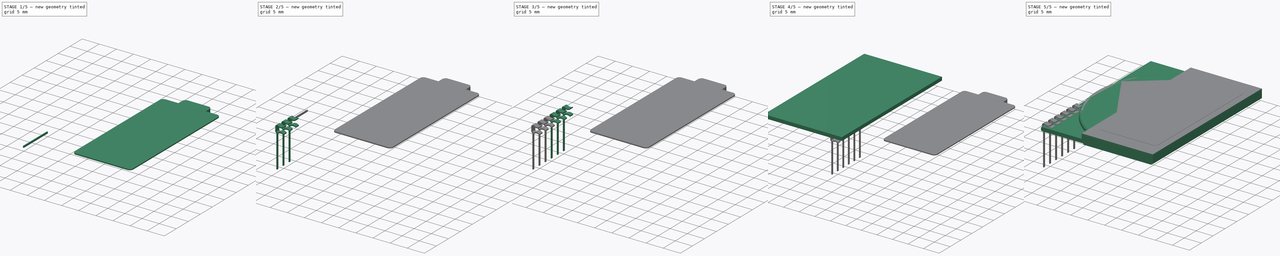
[diagram: build sequence overview — one tinted view per stage of 5, left to right]
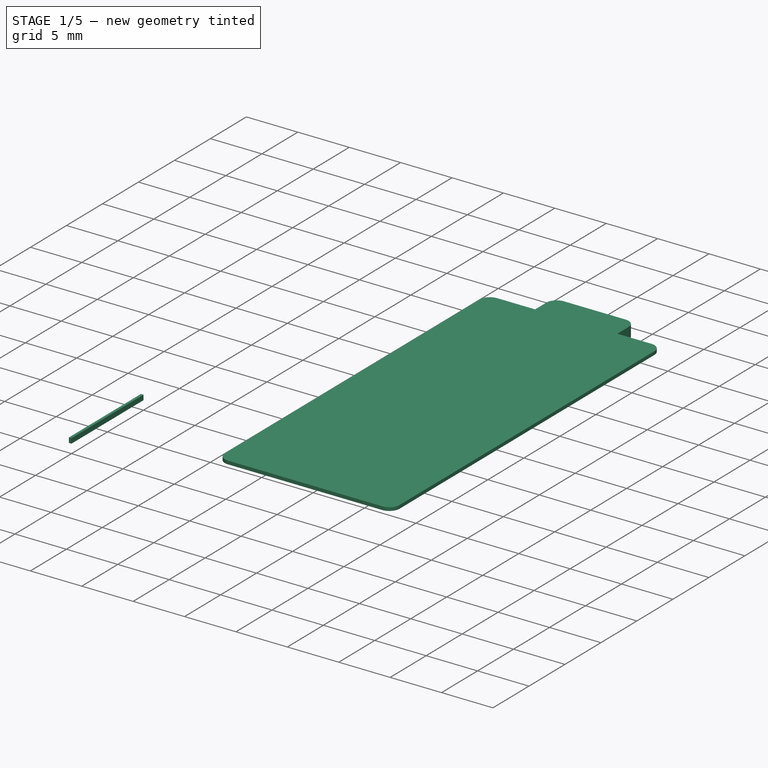
[diagram: stage 1 of 5 — iso view after this stage's code; geometry added in this stage tinted green]
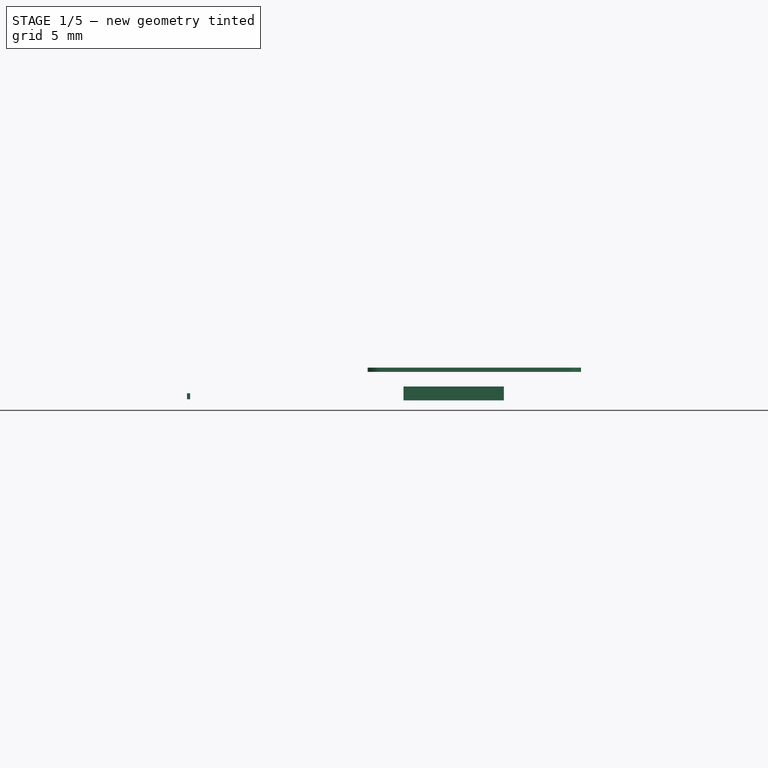
[diagram: stage 1 of 5 — front view after this stage's code; geometry added in this stage tinted green]
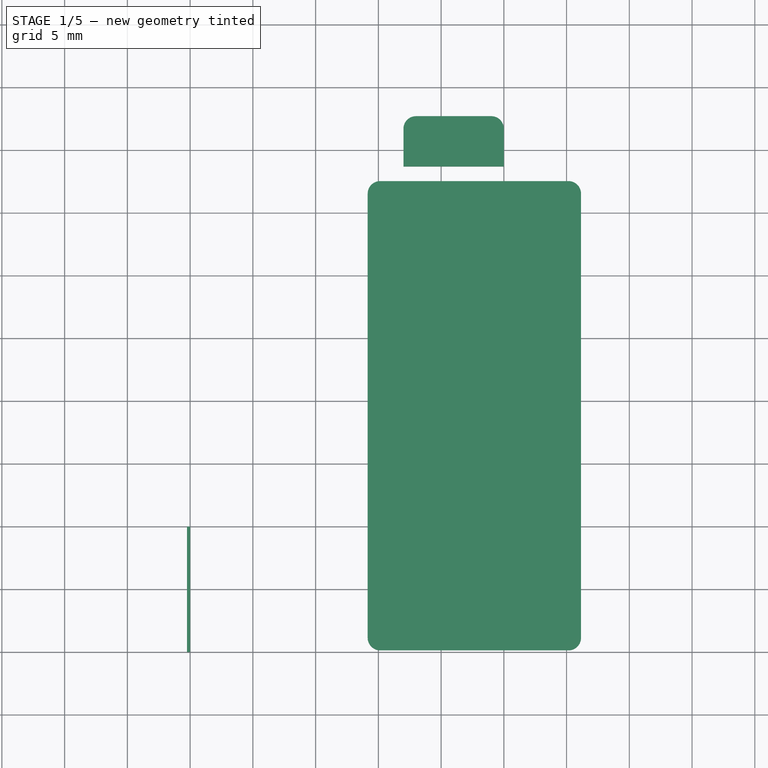
[diagram: stage 1 of 5 — top view after this stage's code; geometry added in this stage tinted green]
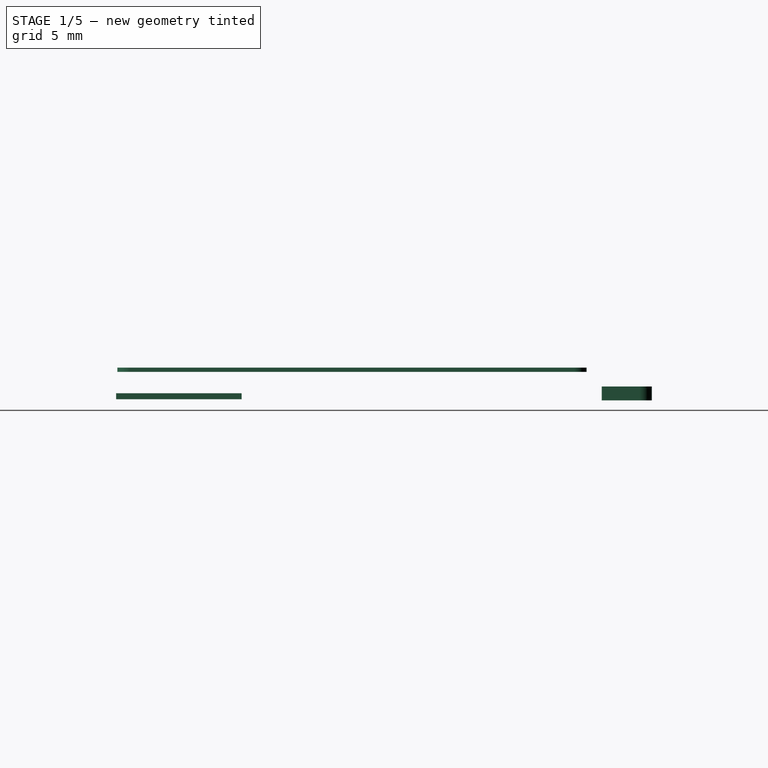
[diagram: stage 1 of 5 — right view after this stage's code; geometry added in this stage tinted green]
FCSTD DOCUMENT  (FreeCAD 0.17R11223 (Git))
Label: EA_T123X-I2C_6
License: All rights reserved
LicenseURL: http://en.wikipedia.org/wiki/All_rights_reserved
objects: Part::Box×19, Sketcher::SketchObject×8, PartDesign::Pad×8, Part::Fillet×7, Part::MultiFuse×7, Part::Chamfer×2, App::DocumentObjectGroup×2, PartDesign::Body×1, Part::Cylinder×1, Part::Cut×1
note: 62 computed .brp shape members not serialized (recipe doc carries the construction recipe); baked Part::Feature solids carry a one-line shape summary decoded from their .brp

FEATURE [Part::Box] Box010  label="Kub004"
  AttacherType = Attacher::AttachEngine3D
  Height = 0.33
  Length = 17
  Placement = pos=(14.15,-9.9,2.6) rot=(0,0,1;0rad)
  Width = 37.4
FEATURE [Part::Fillet] Fillet001
  Base = -> Box010
  Edges = 1 edges r=1: [Edge1]
FEATURE [Part::Fillet] Fillet002
  Base = -> Fillet001
  Edges = 1 edges r=1: [Edge15]
FEATURE [Part::Fillet] Fillet003
  Base = -> Fillet002
  Edges = 1 edges r=1: [Edge16]
FEATURE [Part::Box] Box023  label="Kub011"
  AttacherType = Attacher::AttachEngine3D
  Height = 0.48
  Length = 0.25
  Placement = pos=(-0.25,-10,0.41) rot=(0,0,1;0rad)
  Width = 10
FEATURE [App::DocumentObjectGroup] Grupp001  label="Legs"
  Group = -> [Fusion,Fusion001,Fusion002,Fusion003,Fusion004,Fusion005,Fusion006]
FEATURE [Part::Box] Box024  label="Kub012"
  AttacherType = Attacher::AttachEngine3D
  Height = 1.1
  Length = 8
  Placement = pos=(0,29,0.33) rot=(0,0,1;0rad)
  Width = 4
FEATURE [Part::Fillet] Fillet004
  Base = -> Box024
  Edges = 1 edges r=1: [Edge7]
FEATURE [Part::Fillet] Fillet005
  Base = -> Fillet004
  Edges = 1 edges r=1: [Edge15]
  Placement = pos=(17,-0.3,0) rot=(0,0,1;0rad)
FEATURE [Part::Fillet] Fillet006
  Base = -> Fillet003
  Edges = 1 edges r=1: [Edge16]
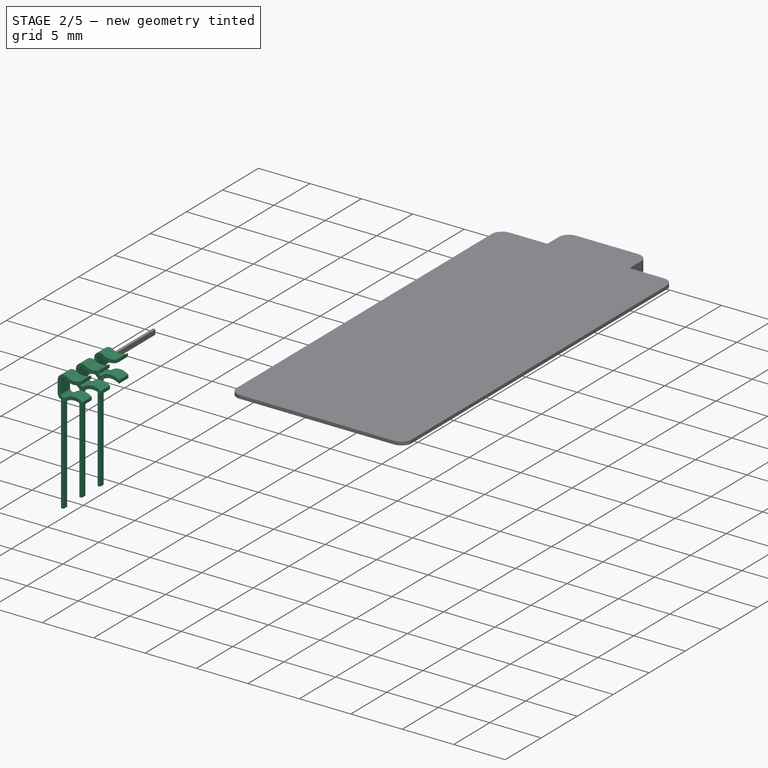
[diagram: stage 2 of 5 — iso view after this stage's code; geometry added in this stage tinted green]
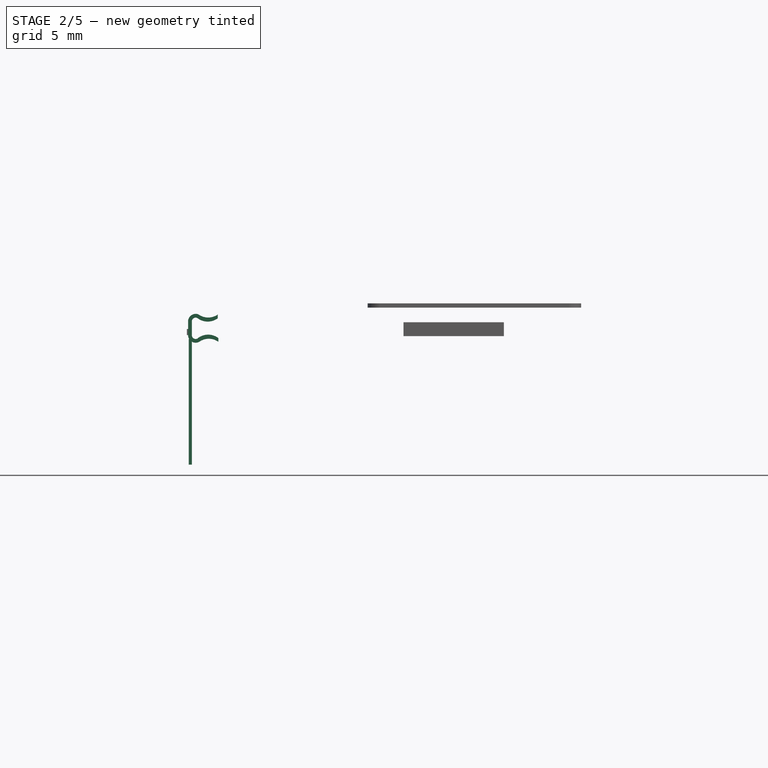
[diagram: stage 2 of 5 — front view after this stage's code; geometry added in this stage tinted green]
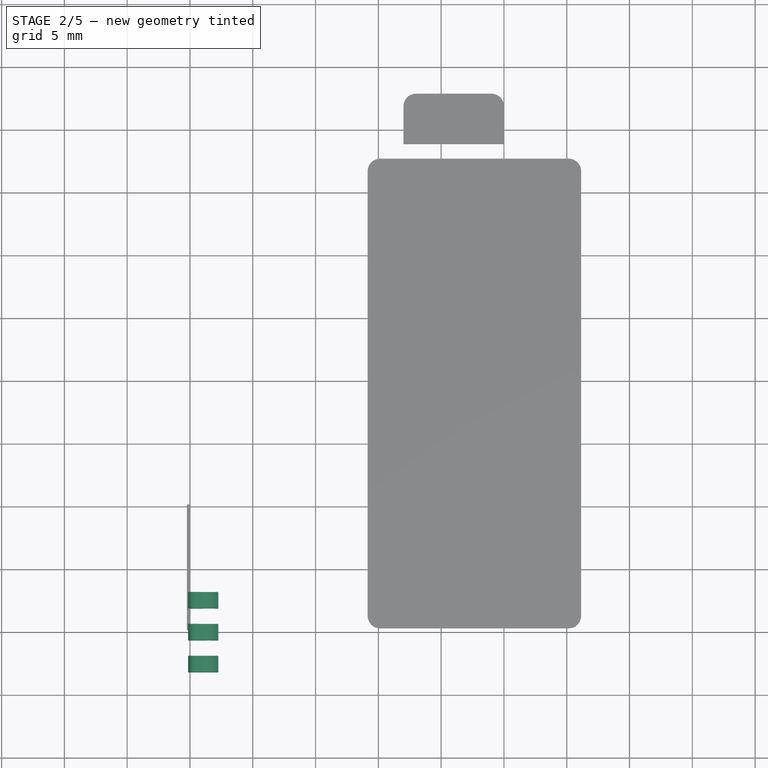
[diagram: stage 2 of 5 — top view after this stage's code; geometry added in this stage tinted green]
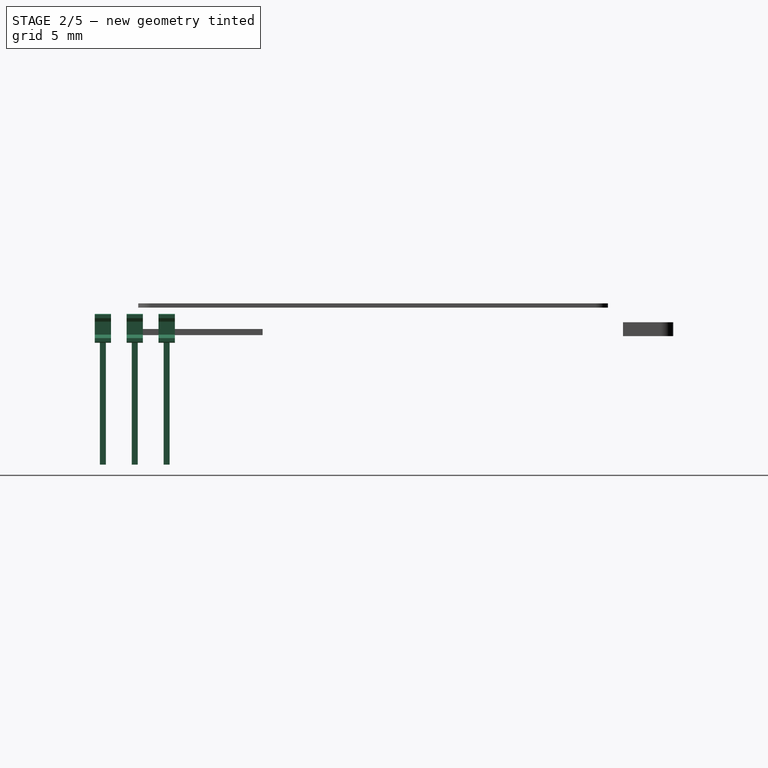
[diagram: stage 2 of 5 — right view after this stage's code; geometry added in this stage tinted green]
FEATURE [Part::Box] Box020  label="Kub008"
  AttacherType = Attacher::AttachEngine3D
  Height = 0.48
  Length = 0.25
  Placement = pos=(-0.25,-10,0.41) rot=(0,0,1;0rad)
  Width = 10
FEATURE [Sketcher::SketchObject] Sketch005
  MapMode = 5
  sketch-geometry (12):
    g0: ArcOfCircle CenterX=0.3 CenterY=1.4 CenterZ=0 NormalX=0 NormalY=0 NormalZ=1 Radius=0.3 StartAngle=1.07185 EndAngle=3.14159
    g1: ArcOfCircle CenterX=0.3 CenterY=0.3 CenterZ=0 NormalX=0 NormalY=0 NormalZ=1 Radius=0.3 StartAngle=3.14159 EndAngle=5.21325
    g2: ArcOfCircle CenterX=1.26236 CenterY=2.71881 CenterZ=0 NormalX=0 NormalY=0 NormalZ=1 Radius=1.33577 StartAngle=4.05255 EndAngle=5.35633
    g3: ArcOfCircle CenterX=0.3 CenterY=1.4 CenterZ=0 NormalX=0 NormalY=0 NormalZ=1 Radius=0.6 StartAngle=1.16195 EndAngle=3.14159
    g4: ArcOfCircle CenterX=1.30141 CenterY=3.03549 CenterZ=0 NormalX=0 NormalY=0 NormalZ=1 Radius=1.32631 StartAngle=4.09955 EndAngle=5.32523
    g5: ArcOfCircle CenterX=0.3 CenterY=0.3 CenterZ=0 NormalX=0 NormalY=0 NormalZ=1 Radius=0.6 StartAngle=3.14159 EndAngle=5.20697
    g6: ArcOfCircle CenterX=1.29932 CenterY=-0.992274 CenterZ=0 NormalX=0 NormalY=0 NormalZ=1 Radius=1.33812 StartAngle=0.919458 EndAngle=2.26419
    g7: ArcOfCircle CenterX=1.34768 CenterY=-1.29457 CenterZ=0 NormalX=0 NormalY=0 NormalZ=1 Radius=1.31124 StartAngle=0.949854 EndAngle=2.19174
    g8: LineSegment StartX=2.11056 StartY=0.071899 StartZ=0 EndX=2.11056 EndY=-0.228101 EndZ=0
    g9: LineSegment StartX=2.06429 StartY=1.95055 StartZ=0 EndX=2.06429 EndY=1.65055 EndZ=0
    g10: LineSegment StartX=0 StartY=1.4 StartZ=0 EndX=0 EndY=0.3 EndZ=0
    g11: LineSegment StartX=-0.3 StartY=1.4 StartZ=0 EndX=-0.3 EndY=0.3 EndZ=0
  constraints (52):
    c: Radius(g0) = 0.3
    c: Radius(g2) = 1.33577
    c: Radius(g1) = 0.3
    c: DistanceX(g-1,g1) = 0.3
    c: DistanceY(g-1,g1) = 0.3
    c: Radius(g5) = 0.6
    c: DistanceX(g-1,g5) = 0.3
    c: DistanceY(g-1,g5) = 0.3
    c: DistanceY(g-1,g0) = 1.4
    c: DistanceX(g-1,g0) = 0.3
    c: Radius(g3) = 0.6
    c: DistanceX(g0,g3) = 0.3
    c: DistanceY(g-1,g3) = 1.4
    c: DistanceY(g5,g7) = 0
    c: DistanceX(g5,g7) = 0
    c: DistanceY(g1,g6) = 0
    c: DistanceX(g1,g6) = 0
    c: DistanceY(g0,g2) = 0
    c: DistanceX(g0,g2) = 0
    c: DistanceY(g3,g4) = 0
    c: DistanceX(g3,g4) = 0
    c: Radius(g4) = 1.32631
    c: Radius(g6) = 1.33812
    c: Radius(g7) = 1.31124
    c: DistanceY(g-1,g1) = 0.3
    c: DistanceY(g-1,g5) = 0.3
    c: DistanceX(g-1,g5) = 0.584797
    c: DistanceX(g1,g1) = 0.444055
    c: DistanceY(g1,g0) = 1.1
    c: DistanceY(g5,g3) = 1.1
    c: DistanceX(g0,g0) = 0.443549
    c: DistanceY(g0,g3) = 0.550548
    c: DistanceY(g7,g6) = 0.3
    c: DistanceY(g2,g4) = 0.3
    c: DistanceY(g3,g4) = 0
    c: DistanceX(g3,g4) = 1.52576
    c: DistanceX(g2,g4) = 0
    c: DistanceX(g5,g7) = 1.52576
    c: DistanceY(g7,g5) = 0
    c: DistanceX(g6,g7) = 0
    c: Coincident(g8,g6)
    c: DistanceY(g8,g8) = 0.3
    c: DistanceX(g7,g8) = 0
    c: Coincident(g9,g4)
    c: DistanceY(g9,g9) = 0.3
    c: DistanceX(g2,g9) = 0
    c: Coincident(g10,g0)
    c: DistanceY(g10,g10) = 1.1
    c: DistanceX(g1,g10) = 0
    c: Coincident(g11,g3)
    c: DistanceY(g11,g11) = 1.1
    c: DistanceX(g5,g11) = 0
FEATURE [PartDesign::Pad] Pad005  label="Pad017"
  Length = 1.3
  Length2 = 100
  Profile = -> Sketch005
  Type = 0
FEATURE [Part::Box] Box021  label="Kub009"
  AttacherType = Attacher::AttachEngine3D
  Height = 0.48
  Length = 0.25
  Placement = pos=(-0.25,-10,0.41) rot=(0,0,1;0rad)
  Width = 10
FEATURE [Part::MultiFuse] Fusion004  label="Leg005"
  Placement = pos=(0.15,-6.99,0.1) rot=(1,0,0;1.5708rad)
  Shapes = -> [Pad005,Box021]
FEATURE [Sketcher::SketchObject] Sketch006
  MapMode = 5
  sketch-geometry (12):
    g0: ArcOfCircle CenterX=0.3 CenterY=1.4 CenterZ=0 NormalX=0 NormalY=0 NormalZ=1 Radius=0.3 StartAngle=1.07185 EndAngle=3.14159
    g1: ArcOfCircle CenterX=0.3 CenterY=0.3 CenterZ=0 NormalX=0 NormalY=0 NormalZ=1 Radius=0.3 StartAngle=3.14159 EndAngle=5.21325
    g2: ArcOfCircle CenterX=1.26236 CenterY=2.71881 CenterZ=0 NormalX=0 NormalY=0 NormalZ=1 Radius=1.33577 StartAngle=4.05255 EndAngle=5.35633
    g3: ArcOfCircle CenterX=0.3 CenterY=1.4 CenterZ=0 NormalX=0 NormalY=0 NormalZ=1 Radius=0.6 StartAngle=1.16195 EndAngle=3.14159
    g4: ArcOfCircle CenterX=1.30141 CenterY=3.03549 CenterZ=0 NormalX=0 NormalY=0 NormalZ=1 Radius=1.32631 StartAngle=4.09955 EndAngle=5.32523
    g5: ArcOfCircle CenterX=0.3 CenterY=0.3 CenterZ=0 NormalX=0 NormalY=0 NormalZ=1 Radius=0.6 StartAngle=3.14159 EndAngle=5.20697
    g6: ArcOfCircle CenterX=1.29932 CenterY=-0.992274 CenterZ=0 NormalX=0 NormalY=0 NormalZ=1 Radius=1.33812 StartAngle=0.919458 EndAngle=2.26419
    g7: ArcOfCircle CenterX=1.34768 CenterY=-1.29457 CenterZ=0 NormalX=0 NormalY=0 NormalZ=1 Radius=1.31124 StartAngle=0.949854 EndAngle=2.19174
    g8: LineSegment StartX=2.11056 StartY=0.071899 StartZ=0 EndX=2.11056 EndY=-0.228101 EndZ=0
    g9: LineSegment StartX=2.06429 StartY=1.95055 StartZ=0 EndX=2.06429 EndY=1.65055 EndZ=0
    g10: LineSegment StartX=0 StartY=1.4 StartZ=0 EndX=0 EndY=0.3 EndZ=0
    g11: LineSegment StartX=-0.3 StartY=1.4 StartZ=0 EndX=-0.3 EndY=0.3 EndZ=0
  constraints (52):
    c: Radius(g0) = 0.3
    c: Radius(g2) = 1.33577
    c: Radius(g1) = 0.3
    c: DistanceX(g-1,g1) = 0.3
    c: DistanceY(g-1,g1) = 0.3
    c: Radius(g5) = 0.6
    c: DistanceX(g-1,g5) = 0.3
    c: DistanceY(g-1,g5) = 0.3
    c: DistanceY(g-1,g0) = 1.4
    c: DistanceX(g-1,g0) = 0.3
    c: Radius(g3) = 0.6
    c: DistanceX(g0,g3) = 0.3
    c: DistanceY(g-1,g3) = 1.4
    c: DistanceY(g5,g7) = 0
    c: DistanceX(g5,g7) = 0
    c: DistanceY(g1,g6) = 0
    c: DistanceX(g1,g6) = 0
    c: DistanceY(g0,g2) = 0
    c: DistanceX(g0,g2) = 0
    c: DistanceY(g3,g4) = 0
    c: DistanceX(g3,g4) = 0
    c: Radius(g4) = 1.32631
    c: Radius(g6) = 1.33812
    c: Radius(g7) = 1.31124
    c: DistanceY(g-1,g1) = 0.3
    c: DistanceY(g-1,g5) = 0.3
    c: DistanceX(g-1,g5) = 0.584797
    c: DistanceX(g1,g1) = 0.444055
    c: DistanceY(g1,g0) = 1.1
    c: DistanceY(g5,g3) = 1.1
    c: DistanceX(g0,g0) = 0.443549
    c: DistanceY(g0,g3) = 0.550548
    c: DistanceY(g7,g6) = 0.3
    c: DistanceY(g2,g4) = 0.3
    c: DistanceY(g3,g4) = 0
    c: DistanceX(g3,g4) = 1.52576
    c: DistanceX(g2,g4) = 0
    c: DistanceX(g5,g7) = 1.52576
    c: DistanceY(g7,g5) = 0
    c: DistanceX(g6,g7) = 0
    c: Coincident(g8,g6)
    c: DistanceY(g8,g8) = 0.3
    c: DistanceX(g7,g8) = 0
    c: Coincident(g9,g4)
    c: DistanceY(g9,g9) = 0.3
    c: DistanceX(g2,g9) = 0
    c: Coincident(g10,g0)
    c: DistanceY(g10,g10) = 1.1
    c: DistanceX(g1,g10) = 0
    c: Coincident(g11,g3)
    c: DistanceY(g11,g11) = 1.1
    c: DistanceX(g5,g11) = 0
FEATURE [PartDesign::Pad] Pad006  label="Pad018"
  Length = 1.3
  Length2 = 100
  Profile = -> Sketch006
  Type = 0
FEATURE [Part::Box] Box022  label="Kub010"
  AttacherType = Attacher::AttachEngine3D
  Height = 0.48
  Length = 0.25
  Placement = pos=(-0.25,-10,0.41) rot=(0,0,1;0rad)
  Width = 10
FEATURE [Part::MultiFuse] Fusion005  label="Leg006"
  Placement = pos=(0.15,-9.53,0.1) rot=(1,0,0;1.5708rad)
  Shapes = -> [Pad006,Box022]
FEATURE [Sketcher::SketchObject] Sketch007
  MapMode = 5
  sketch-geometry (12):
    g0: ArcOfCircle CenterX=0.3 CenterY=1.4 CenterZ=0 NormalX=0 NormalY=0 NormalZ=1 Radius=0.3 StartAngle=1.07185 EndAngle=3.14159
    g1: ArcOfCircle CenterX=0.3 CenterY=0.3 CenterZ=0 NormalX=0 NormalY=0 NormalZ=1 Radius=0.3 StartAngle=3.14159 EndAngle=5.21325
    g2: ArcOfCircle CenterX=1.26236 CenterY=2.71881 CenterZ=0 NormalX=0 NormalY=0 NormalZ=1 Radius=1.33577 StartAngle=4.05255 EndAngle=5.35633
    g3: ArcOfCircle CenterX=0.3 CenterY=1.4 CenterZ=0 NormalX=0 NormalY=0 NormalZ=1 Radius=0.6 StartAngle=1.16195 EndAngle=3.14159
    g4: ArcOfCircle CenterX=1.30141 CenterY=3.03549 CenterZ=0 NormalX=0 NormalY=0 NormalZ=1 Radius=1.32631 StartAngle=4.09955 EndAngle=5.32523
    g5: ArcOfCircle CenterX=0.3 CenterY=0.3 CenterZ=0 NormalX=0 NormalY=0 NormalZ=1 Radius=0.6 StartAngle=3.14159 EndAngle=5.20697
    g6: ArcOfCircle CenterX=1.29932 CenterY=-0.992274 CenterZ=0 NormalX=0 NormalY=0 NormalZ=1 Radius=1.33812 StartAngle=0.919458 EndAngle=2.26419
    g7: ArcOfCircle CenterX=1.34768 CenterY=-1.29457 CenterZ=0 NormalX=0 NormalY=0 NormalZ=1 Radius=1.31124 StartAngle=0.949854 EndAngle=2.19174
    g8: LineSegment StartX=2.11056 StartY=0.071899 StartZ=0 EndX=2.11056 EndY=-0.228101 EndZ=0
    g9: LineSegment StartX=2.06429 StartY=1.95055 StartZ=0 EndX=2.06429 EndY=1.65055 EndZ=0
    g10: LineSegment StartX=0 StartY=1.4 StartZ=0 EndX=0 EndY=0.3 EndZ=0
    g11: LineSegment StartX=-0.3 StartY=1.4 StartZ=0 EndX=-0.3 EndY=0.3 EndZ=0
  constraints (52):
    c: Radius(g0) = 0.3
    c: Radius(g2) = 1.33577
    c: Radius(g1) = 0.3
    c: DistanceX(g-1,g1) = 0.3
    c: DistanceY(g-1,g1) = 0.3
    c: Radius(g5) = 0.6
    c: DistanceX(g-1,g5) = 0.3
    c: DistanceY(g-1,g5) = 0.3
    c: DistanceY(g-1,g0) = 1.4
    c: DistanceX(g-1,g0) = 0.3
    c: Radius(g3) = 0.6
    c: DistanceX(g0,g3) = 0.3
    c: DistanceY(g-1,g3) = 1.4
    c: DistanceY(g5,g7) = 0
    c: DistanceX(g5,g7) = 0
    c: DistanceY(g1,g6) = 0
    c: DistanceX(g1,g6) = 0
    c: DistanceY(g0,g2) = 0
    c: DistanceX(g0,g2) = 0
    c: DistanceY(g3,g4) = 0
    c: DistanceX(g3,g4) = 0
    c: Radius(g4) = 1.32631
    c: Radius(g6) = 1.33812
    c: Radius(g7) = 1.31124
    c: DistanceY(g-1,g1) = 0.3
    c: DistanceY(g-1,g5) = 0.3
    c: DistanceX(g-1,g5) = 0.584797
    c: DistanceX(g1,g1) = 0.444055
    c: DistanceY(g1,g0) = 1.1
    c: DistanceY(g5,g3) = 1.1
    c: DistanceX(g0,g0) = 0.443549
    c: DistanceY(g0,g3) = 0.550548
    c: DistanceY(g7,g6) = 0.3
    c: DistanceY(g2,g4) = 0.3
    c: DistanceY(g3,g4) = 0
    c: DistanceX(g3,g4) = 1.52576
    c: DistanceX(g2,g4) = 0
    c: DistanceX(g5,g7) = 1.52576
    c: DistanceY(g7,g5) = 0
    c: DistanceX(g6,g7) = 0
    c: Coincident(g8,g6)
    c: DistanceY(g8,g8) = 0.3
    c: DistanceX(g7,g8) = 0
    c: Coincident(g9,g4)
    c: DistanceY(g9,g9) = 0.3
    c: DistanceX(g2,g9) = 0
    c: Coincident(g10,g0)
    c: DistanceY(g10,g10) = 1.1
    c: DistanceX(g1,g10) = 0
    c: Coincident(g11,g3)
    c: DistanceY(g11,g11) = 1.1
    c: DistanceX(g5,g11) = 0
FEATURE [PartDesign::Pad] Pad007  label="Pad019"
  Length = 1.3
  Length2 = 100
  Profile = -> Sketch007
  Type = 0
FEATURE [Part::MultiFuse] Fusion006  label="Leg007"
  Placement = pos=(0.15,-12.07,0.1) rot=(1,0,0;1.5708rad)
  Shapes = -> [Pad007,Box023]
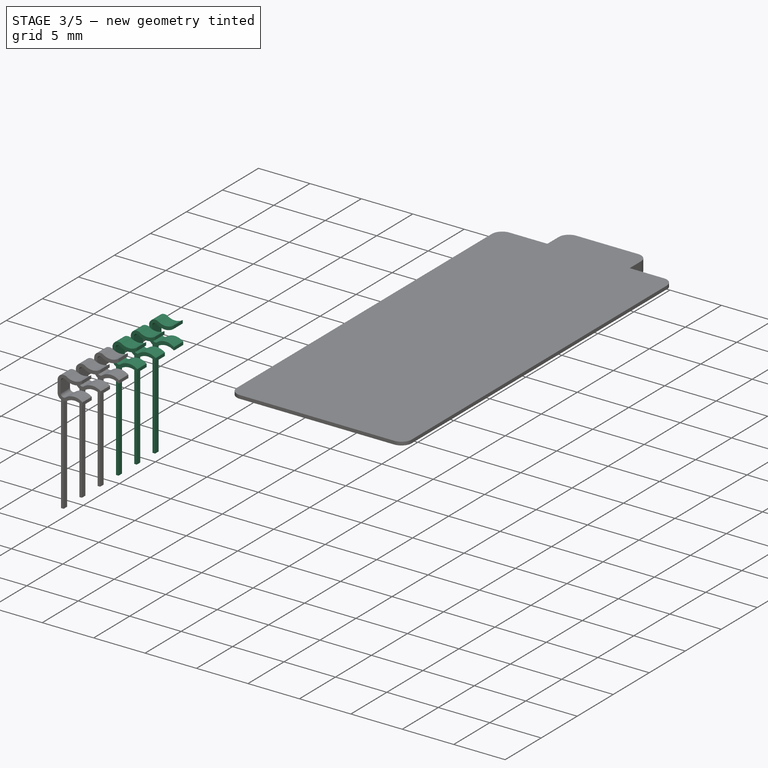
[diagram: stage 3 of 5 — iso view after this stage's code; geometry added in this stage tinted green]
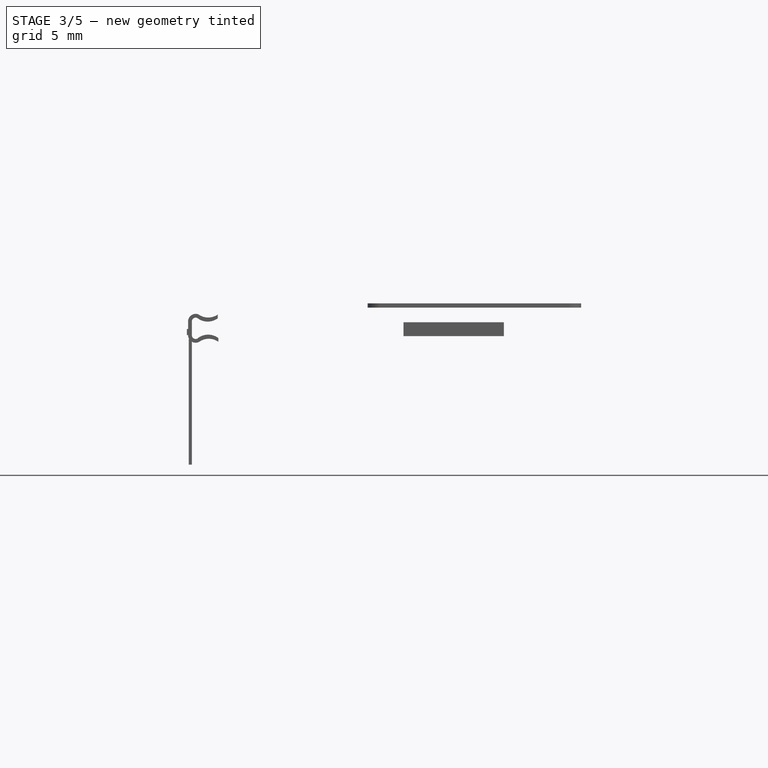
[diagram: stage 3 of 5 — front view after this stage's code; geometry added in this stage tinted green]
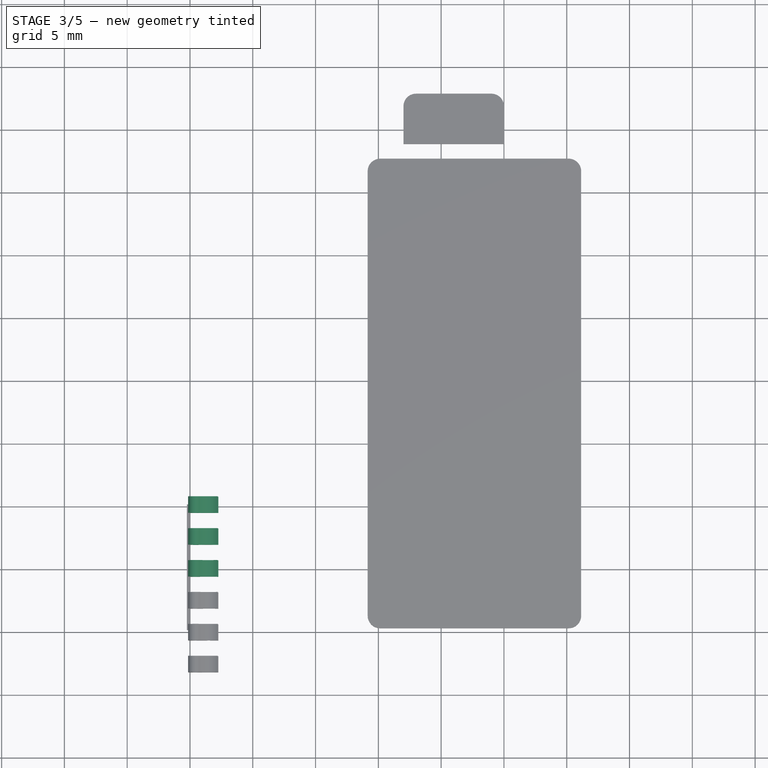
[diagram: stage 3 of 5 — top view after this stage's code; geometry added in this stage tinted green]
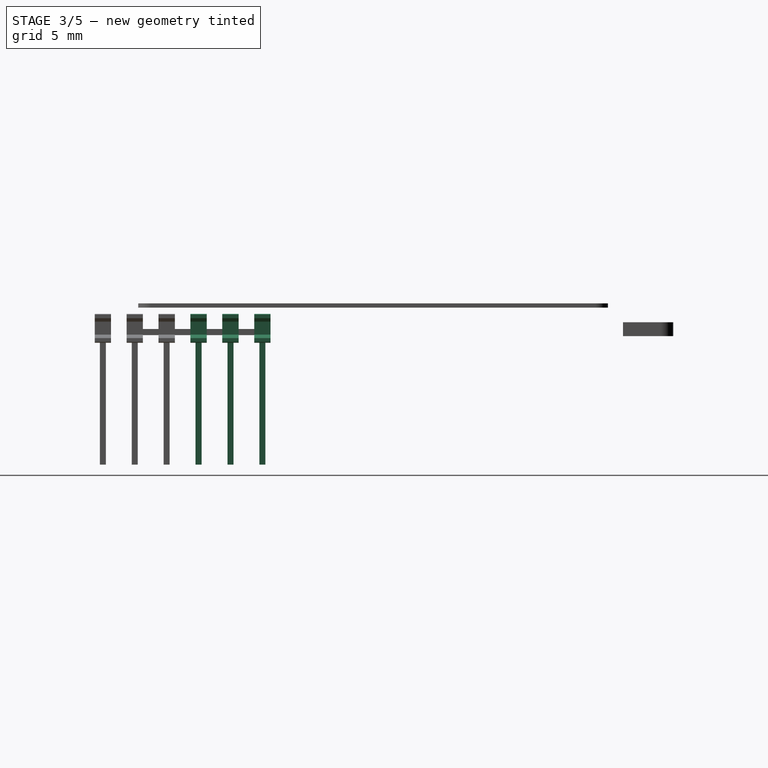
[diagram: stage 3 of 5 — right view after this stage's code; geometry added in this stage tinted green]
FEATURE [Part::Box] Box011  label="Kub005"
  AttacherType = Attacher::AttachEngine3D
  Height = 0.48
  Length = 0.25
  Placement = pos=(-0.25,-10,0.41) rot=(0,0,1;0rad)
  Width = 10
FEATURE [App::DocumentObjectGroup] Grupp  label="Padds"
  Group = -> [Box012,Box013,Box014,Box015,Box016,Box017]
FEATURE [Sketcher::SketchObject] Sketch002
  MapMode = 5
  sketch-geometry (12):
    g0: ArcOfCircle CenterX=0.3 CenterY=1.4 CenterZ=0 NormalX=0 NormalY=0 NormalZ=1 Radius=0.3 StartAngle=1.07185 EndAngle=3.14159
    g1: ArcOfCircle CenterX=0.3 CenterY=0.3 CenterZ=0 NormalX=0 NormalY=0 NormalZ=1 Radius=0.3 StartAngle=3.14159 EndAngle=5.21325
    g2: ArcOfCircle CenterX=1.26236 CenterY=2.71881 CenterZ=0 NormalX=0 NormalY=0 NormalZ=1 Radius=1.33577 StartAngle=4.05255 EndAngle=5.35633
    g3: ArcOfCircle CenterX=0.3 CenterY=1.4 CenterZ=0 NormalX=0 NormalY=0 NormalZ=1 Radius=0.6 StartAngle=1.16195 EndAngle=3.14159
    g4: ArcOfCircle CenterX=1.30141 CenterY=3.03549 CenterZ=0 NormalX=0 NormalY=0 NormalZ=1 Radius=1.32631 StartAngle=4.09955 EndAngle=5.32523
    g5: ArcOfCircle CenterX=0.3 CenterY=0.3 CenterZ=0 NormalX=0 NormalY=0 NormalZ=1 Radius=0.6 StartAngle=3.14159 EndAngle=5.20697
    g6: ArcOfCircle CenterX=1.29932 CenterY=-0.992274 CenterZ=0 NormalX=0 NormalY=0 NormalZ=1 Radius=1.33812 StartAngle=0.919458 EndAngle=2.26419
    g7: ArcOfCircle CenterX=1.34768 CenterY=-1.29457 CenterZ=0 NormalX=0 NormalY=0 NormalZ=1 Radius=1.31124 StartAngle=0.949854 EndAngle=2.19174
    g8: LineSegment StartX=2.11056 StartY=0.071899 StartZ=0 EndX=2.11056 EndY=-0.228101 EndZ=0
    g9: LineSegment StartX=2.06429 StartY=1.95055 StartZ=0 EndX=2.06429 EndY=1.65055 EndZ=0
    g10: LineSegment StartX=0 StartY=1.4 StartZ=0 EndX=0 EndY=0.3 EndZ=0
    g11: LineSegment StartX=-0.3 StartY=1.4 StartZ=0 EndX=-0.3 EndY=0.3 EndZ=0
  constraints (52):
    c: Radius(g0) = 0.3
    c: Radius(g2) = 1.33577
    c: Radius(g1) = 0.3
    c: DistanceX(g-1,g1) = 0.3
    c: DistanceY(g-1,g1) = 0.3
    c: Radius(g5) = 0.6
    c: DistanceX(g-1,g5) = 0.3
    c: DistanceY(g-1,g5) = 0.3
    c: DistanceY(g-1,g0) = 1.4
    c: DistanceX(g-1,g0) = 0.3
    c: Radius(g3) = 0.6
    c: DistanceX(g0,g3) = 0.3
    c: DistanceY(g-1,g3) = 1.4
    c: DistanceY(g5,g7) = 0
    c: DistanceX(g5,g7) = 0
    c: DistanceY(g1,g6) = 0
    c: DistanceX(g1,g6) = 0
    c: DistanceY(g0,g2) = 0
    c: DistanceX(g0,g2) = 0
    c: DistanceY(g3,g4) = 0
    c: DistanceX(g3,g4) = 0
    c: Radius(g4) = 1.32631
    c: Radius(g6) = 1.33812
    c: Radius(g7) = 1.31124
    c: DistanceY(g-1,g1) = 0.3
    c: DistanceY(g-1,g5) = 0.3
    c: DistanceX(g-1,g5) = 0.584797
    c: DistanceX(g1,g1) = 0.444055
    c: DistanceY(g1,g0) = 1.1
    c: DistanceY(g5,g3) = 1.1
    c: DistanceX(g0,g0) = 0.443549
    c: DistanceY(g0,g3) = 0.550548
    c: DistanceY(g7,g6) = 0.3
    c: DistanceY(g2,g4) = 0.3
    c: DistanceY(g3,g4) = 0
    c: DistanceX(g3,g4) = 1.52576
    c: DistanceX(g2,g4) = 0
    c: DistanceX(g5,g7) = 1.52576
    c: DistanceY(g7,g5) = 0
    c: DistanceX(g6,g7) = 0
    c: Coincident(g8,g6)
    c: DistanceY(g8,g8) = 0.3
    c: DistanceX(g7,g8) = 0
    c: Coincident(g9,g4)
    c: DistanceY(g9,g9) = 0.3
    c: DistanceX(g2,g9) = 0
    c: Coincident(g10,g0)
    c: DistanceY(g10,g10) = 1.1
    c: DistanceX(g1,g10) = 0
    c: Coincident(g11,g3)
    c: DistanceY(g11,g11) = 1.1
    c: DistanceX(g5,g11) = 0
FEATURE [PartDesign::Pad] Pad002  label="Pad014"
  Length = 1.3
  Length2 = 100
  Profile = -> Sketch002
  Type = 0
FEATURE [Part::Box] Box018  label="Kub006"
  AttacherType = Attacher::AttachEngine3D
  Height = 0.48
  Length = 0.25
  Placement = pos=(-0.25,-10,0.41) rot=(0,0,1;0rad)
  Width = 10
FEATURE [Part::MultiFuse] Fusion001  label="Leg002"
  Placement = pos=(0.15,-1.91,0.1) rot=(1,0,0;1.5708rad)
  Shapes = -> [Pad002,Box018]
FEATURE [Sketcher::SketchObject] Sketch003
  MapMode = 5
  sketch-geometry (12):
    g0: ArcOfCircle CenterX=0.3 CenterY=1.4 CenterZ=0 NormalX=0 NormalY=0 NormalZ=1 Radius=0.3 StartAngle=1.07185 EndAngle=3.14159
    g1: ArcOfCircle CenterX=0.3 CenterY=0.3 CenterZ=0 NormalX=0 NormalY=0 NormalZ=1 Radius=0.3 StartAngle=3.14159 EndAngle=5.21325
    g2: ArcOfCircle CenterX=1.26236 CenterY=2.71881 CenterZ=0 NormalX=0 NormalY=0 NormalZ=1 Radius=1.33577 StartAngle=4.05255 EndAngle=5.35633
    g3: ArcOfCircle CenterX=0.3 CenterY=1.4 CenterZ=0 NormalX=0 NormalY=0 NormalZ=1 Radius=0.6 StartAngle=1.16195 EndAngle=3.14159
    g4: ArcOfCircle CenterX=1.30141 CenterY=3.03549 CenterZ=0 NormalX=0 NormalY=0 NormalZ=1 Radius=1.32631 StartAngle=4.09955 EndAngle=5.32523
    g5: ArcOfCircle CenterX=0.3 CenterY=0.3 CenterZ=0 NormalX=0 NormalY=0 NormalZ=1 Radius=0.6 StartAngle=3.14159 EndAngle=5.20697
    g6: ArcOfCircle CenterX=1.29932 CenterY=-0.992274 CenterZ=0 NormalX=0 NormalY=0 NormalZ=1 Radius=1.33812 StartAngle=0.919458 EndAngle=2.26419
    g7: ArcOfCircle CenterX=1.34768 CenterY=-1.29457 CenterZ=0 NormalX=0 NormalY=0 NormalZ=1 Radius=1.31124 StartAngle=0.949854 EndAngle=2.19174
    g8: LineSegment StartX=2.11056 StartY=0.071899 StartZ=0 EndX=2.11056 EndY=-0.228101 EndZ=0
    g9: LineSegment StartX=2.06429 StartY=1.95055 StartZ=0 EndX=2.06429 EndY=1.65055 EndZ=0
    g10: LineSegment StartX=0 StartY=1.4 StartZ=0 EndX=0 EndY=0.3 EndZ=0
    g11: LineSegment StartX=-0.3 StartY=1.4 StartZ=0 EndX=-0.3 EndY=0.3 EndZ=0
  constraints (52):
    c: Radius(g0) = 0.3
    c: Radius(g2) = 1.33577
    c: Radius(g1) = 0.3
    c: DistanceX(g-1,g1) = 0.3
    c: DistanceY(g-1,g1) = 0.3
    c: Radius(g5) = 0.6
    c: DistanceX(g-1,g5) = 0.3
    c: DistanceY(g-1,g5) = 0.3
    c: DistanceY(g-1,g0) = 1.4
    c: DistanceX(g-1,g0) = 0.3
    c: Radius(g3) = 0.6
    c: DistanceX(g0,g3) = 0.3
    c: DistanceY(g-1,g3) = 1.4
    c: DistanceY(g5,g7) = 0
    c: DistanceX(g5,g7) = 0
    c: DistanceY(g1,g6) = 0
    c: DistanceX(g1,g6) = 0
    c: DistanceY(g0,g2) = 0
    c: DistanceX(g0,g2) = 0
    c: DistanceY(g3,g4) = 0
    c: DistanceX(g3,g4) = 0
    c: Radius(g4) = 1.32631
    c: Radius(g6) = 1.33812
    c: Radius(g7) = 1.31124
    c: DistanceY(g-1,g1) = 0.3
    c: DistanceY(g-1,g5) = 0.3
    c: DistanceX(g-1,g5) = 0.584797
    c: DistanceX(g1,g1) = 0.444055
    c: DistanceY(g1,g0) = 1.1
    c: DistanceY(g5,g3) = 1.1
    c: DistanceX(g0,g0) = 0.443549
    c: DistanceY(g0,g3) = 0.550548
    c: DistanceY(g7,g6) = 0.3
    c: DistanceY(g2,g4) = 0.3
    c: DistanceY(g3,g4) = 0
    c: DistanceX(g3,g4) = 1.52576
    c: DistanceX(g2,g4) = 0
    c: DistanceX(g5,g7) = 1.52576
    c: DistanceY(g7,g5) = 0
    c: DistanceX(g6,g7) = 0
    c: Coincident(g8,g6)
    c: DistanceY(g8,g8) = 0.3
    c: DistanceX(g7,g8) = 0
    c: Coincident(g9,g4)
    c: DistanceY(g9,g9) = 0.3
    c: DistanceX(g2,g9) = 0
    c: Coincident(g10,g0)
    c: DistanceY(g10,g10) = 1.1
    c: DistanceX(g1,g10) = 0
    c: Coincident(g11,g3)
    c: DistanceY(g11,g11) = 1.1
    c: DistanceX(g5,g11) = 0
FEATURE [PartDesign::Pad] Pad003  label="Pad015"
  Length = 1.3
  Length2 = 100
  Profile = -> Sketch003
  Type = 0
FEATURE [Part::Box] Box019  label="Kub007"
  AttacherType = Attacher::AttachEngine3D
  Height = 0.48
  Length = 0.25
  Placement = pos=(-0.25,-10,0.41) rot=(0,0,1;0rad)
  Width = 10
FEATURE [Part::MultiFuse] Fusion002  label="Leg003"
  Placement = pos=(0.15,0.63,0.1) rot=(1,0,0;1.5708rad)
  Shapes = -> [Pad003,Box019]
FEATURE [Sketcher::SketchObject] Sketch004
  MapMode = 5
  sketch-geometry (12):
    g0: ArcOfCircle CenterX=0.3 CenterY=1.4 CenterZ=0 NormalX=0 NormalY=0 NormalZ=1 Radius=0.3 StartAngle=1.07185 EndAngle=3.14159
    g1: ArcOfCircle CenterX=0.3 CenterY=0.3 CenterZ=0 NormalX=0 NormalY=0 NormalZ=1 Radius=0.3 StartAngle=3.14159 EndAngle=5.21325
    g2: ArcOfCircle CenterX=1.26236 CenterY=2.71881 CenterZ=0 NormalX=0 NormalY=0 NormalZ=1 Radius=1.33577 StartAngle=4.05255 EndAngle=5.35633
    g3: ArcOfCircle CenterX=0.3 CenterY=1.4 CenterZ=0 NormalX=0 NormalY=0 NormalZ=1 Radius=0.6 StartAngle=1.16195 EndAngle=3.14159
    g4: ArcOfCircle CenterX=1.30141 CenterY=3.03549 CenterZ=0 NormalX=0 NormalY=0 NormalZ=1 Radius=1.32631 StartAngle=4.09955 EndAngle=5.32523
    g5: ArcOfCircle CenterX=0.3 CenterY=0.3 CenterZ=0 NormalX=0 NormalY=0 NormalZ=1 Radius=0.6 StartAngle=3.14159 EndAngle=5.20697
    g6: ArcOfCircle CenterX=1.29932 CenterY=-0.992274 CenterZ=0 NormalX=0 NormalY=0 NormalZ=1 Radius=1.33812 StartAngle=0.919458 EndAngle=2.26419
    g7: ArcOfCircle CenterX=1.34768 CenterY=-1.29457 CenterZ=0 NormalX=0 NormalY=0 NormalZ=1 Radius=1.31124 StartAngle=0.949854 EndAngle=2.19174
    g8: LineSegment StartX=2.11056 StartY=0.071899 StartZ=0 EndX=2.11056 EndY=-0.228101 EndZ=0
    g9: LineSegment StartX=2.06429 StartY=1.95055 StartZ=0 EndX=2.06429 EndY=1.65055 EndZ=0
    g10: LineSegment StartX=0 StartY=1.4 StartZ=0 EndX=0 EndY=0.3 EndZ=0
    g11: LineSegment StartX=-0.3 StartY=1.4 StartZ=0 EndX=-0.3 EndY=0.3 EndZ=0
  constraints (52):
    c: Radius(g0) = 0.3
    c: Radius(g2) = 1.33577
    c: Radius(g1) = 0.3
    c: DistanceX(g-1,g1) = 0.3
    c: DistanceY(g-1,g1) = 0.3
    c: Radius(g5) = 0.6
    c: DistanceX(g-1,g5) = 0.3
    c: DistanceY(g-1,g5) = 0.3
    c: DistanceY(g-1,g0) = 1.4
    c: DistanceX(g-1,g0) = 0.3
    c: Radius(g3) = 0.6
    c: DistanceX(g0,g3) = 0.3
    c: DistanceY(g-1,g3) = 1.4
    c: DistanceY(g5,g7) = 0
    c: DistanceX(g5,g7) = 0
    c: DistanceY(g1,g6) = 0
    c: DistanceX(g1,g6) = 0
    c: DistanceY(g0,g2) = 0
    c: DistanceX(g0,g2) = 0
    c: DistanceY(g3,g4) = 0
    c: DistanceX(g3,g4) = 0
    c: Radius(g4) = 1.32631
    c: Radius(g6) = 1.33812
    c: Radius(g7) = 1.31124
    c: DistanceY(g-1,g1) = 0.3
    c: DistanceY(g-1,g5) = 0.3
    c: DistanceX(g-1,g5) = 0.584797
    c: DistanceX(g1,g1) = 0.444055
    c: DistanceY(g1,g0) = 1.1
    c: DistanceY(g5,g3) = 1.1
    c: DistanceX(g0,g0) = 0.443549
    c: DistanceY(g0,g3) = 0.550548
    c: DistanceY(g7,g6) = 0.3
    c: DistanceY(g2,g4) = 0.3
    c: DistanceY(g3,g4) = 0
    c: DistanceX(g3,g4) = 1.52576
    c: DistanceX(g2,g4) = 0
    c: DistanceX(g5,g7) = 1.52576
    c: DistanceY(g7,g5) = 0
    c: DistanceX(g6,g7) = 0
    c: Coincident(g8,g6)
    c: DistanceY(g8,g8) = 0.3
    c: DistanceX(g7,g8) = 0
    c: Coincident(g9,g4)
    c: DistanceY(g9,g9) = 0.3
    c: DistanceX(g2,g9) = 0
    c: Coincident(g10,g0)
    c: DistanceY(g10,g10) = 1.1
    c: DistanceX(g1,g10) = 0
    c: Coincident(g11,g3)
    c: DistanceY(g11,g11) = 1.1
    c: DistanceX(g5,g11) = 0
FEATURE [PartDesign::Pad] Pad004  label="Pad016"
  Length = 1.3
  Length2 = 100
  Profile = -> Sketch004
  Type = 0
FEATURE [Part::MultiFuse] Fusion003  label="Leg004"
  Placement = pos=(0.15,-4.45,0.1) rot=(1,0,0;1.5708rad)
  Shapes = -> [Pad004,Box020]
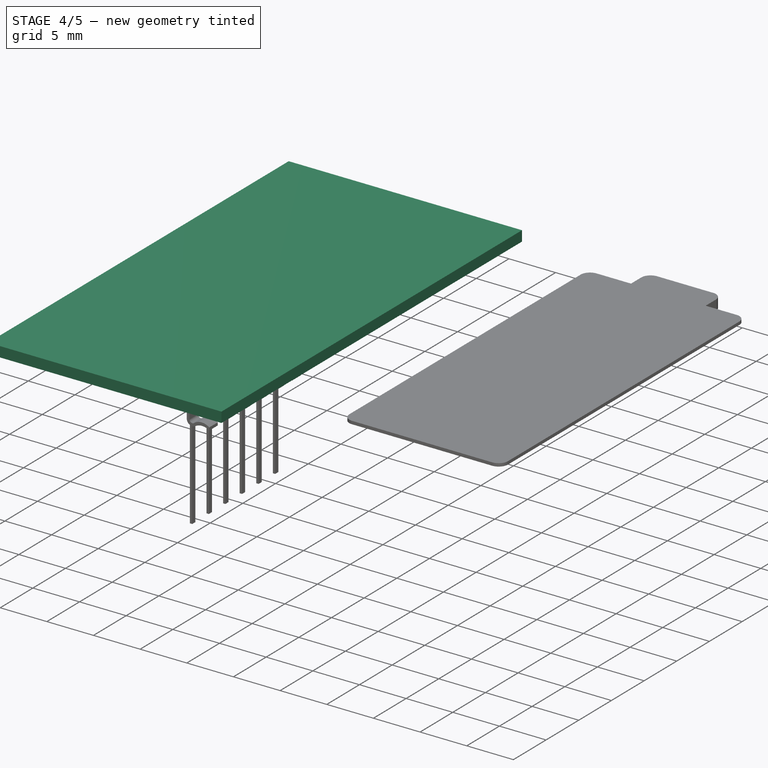
[diagram: stage 4 of 5 — iso view after this stage's code; geometry added in this stage tinted green]
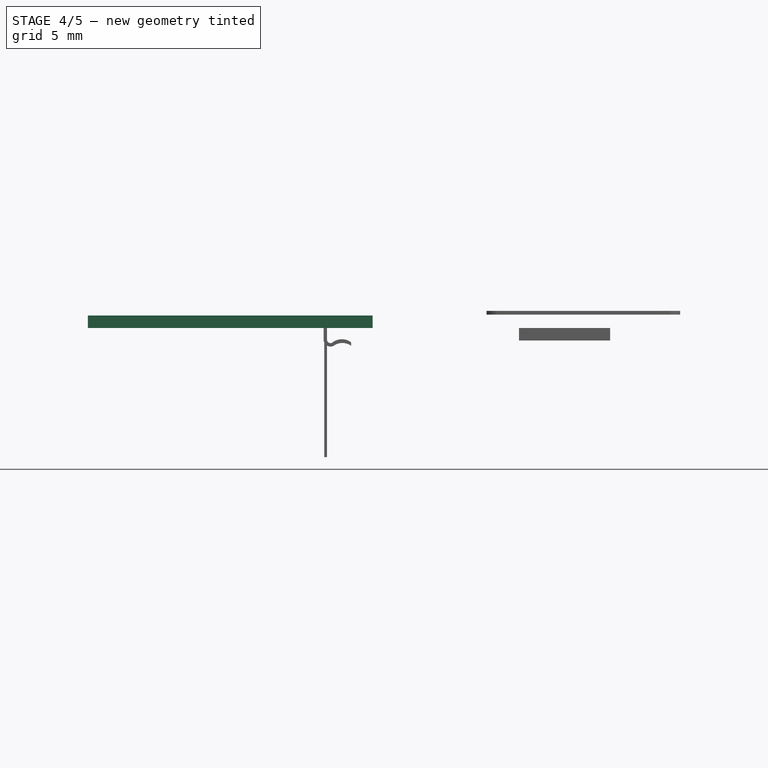
[diagram: stage 4 of 5 — front view after this stage's code; geometry added in this stage tinted green]
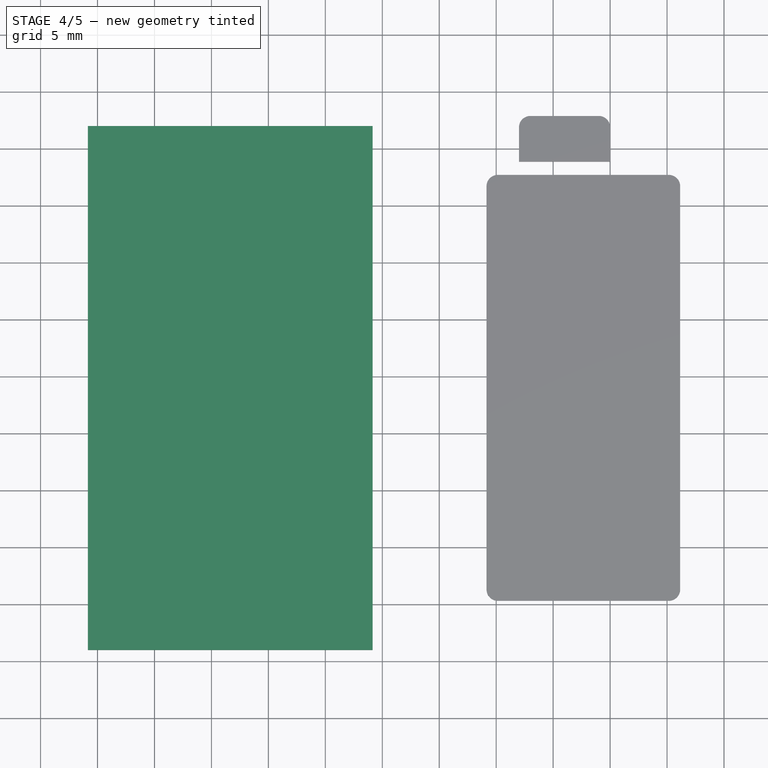
[diagram: stage 4 of 5 — top view after this stage's code; geometry added in this stage tinted green]
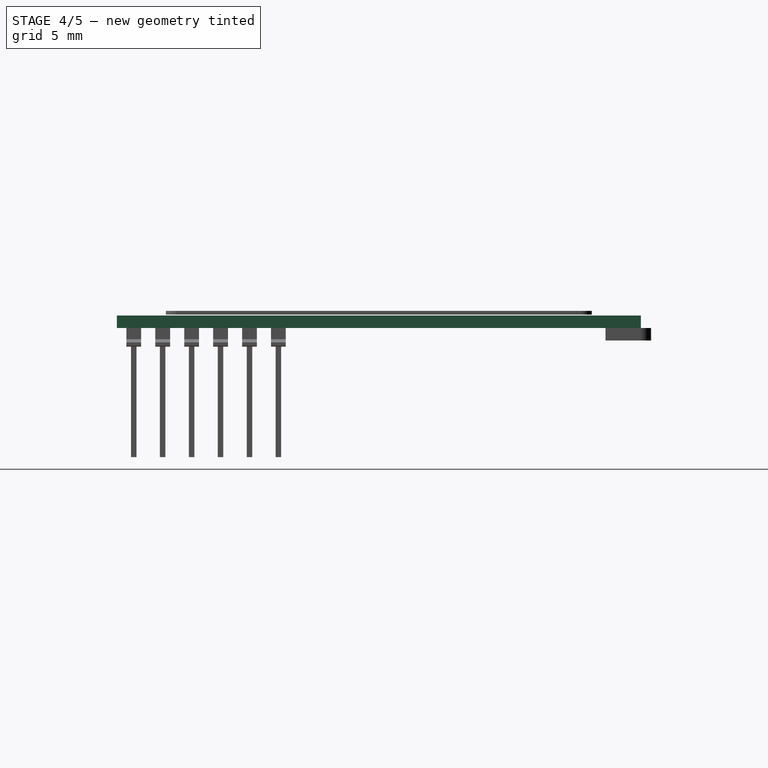
[diagram: stage 4 of 5 — right view after this stage's code; geometry added in this stage tinted green]
FEATURE [Part::Box] Box003  label="Kub003"
  AttacherType = Attacher::AttachEngine3D
  Height = 1.1
  Length = 25
  Placement = pos=(-20.85,-14.2,1.43) rot=(0,0,1;0rad)
  Width = 46
FEATURE [Sketcher::SketchObject] Sketch001
  MapMode = 5
  sketch-geometry (12):
    g0: ArcOfCircle CenterX=0.3 CenterY=1.4 CenterZ=0 NormalX=0 NormalY=0 NormalZ=1 Radius=0.3 StartAngle=1.07185 EndAngle=3.14159
    g1: ArcOfCircle CenterX=0.3 CenterY=0.3 CenterZ=0 NormalX=0 NormalY=0 NormalZ=1 Radius=0.3 StartAngle=3.14159 EndAngle=5.21325
    g2: ArcOfCircle CenterX=1.26236 CenterY=2.71881 CenterZ=0 NormalX=0 NormalY=0 NormalZ=1 Radius=1.33577 StartAngle=4.05255 EndAngle=5.35633
    g3: ArcOfCircle CenterX=0.3 CenterY=1.4 CenterZ=0 NormalX=0 NormalY=0 NormalZ=1 Radius=0.6 StartAngle=1.16195 EndAngle=3.14159
    g4: ArcOfCircle CenterX=1.30141 CenterY=3.03549 CenterZ=0 NormalX=0 NormalY=0 NormalZ=1 Radius=1.32631 StartAngle=4.09955 EndAngle=5.32523
    g5: ArcOfCircle CenterX=0.3 CenterY=0.3 CenterZ=0 NormalX=0 NormalY=0 NormalZ=1 Radius=0.6 StartAngle=3.14159 EndAngle=5.20697
    g6: ArcOfCircle CenterX=1.29932 CenterY=-0.992274 CenterZ=0 NormalX=0 NormalY=0 NormalZ=1 Radius=1.33812 StartAngle=0.919458 EndAngle=2.26419
    g7: ArcOfCircle CenterX=1.34768 CenterY=-1.29457 CenterZ=0 NormalX=0 NormalY=0 NormalZ=1 Radius=1.31124 StartAngle=0.949854 EndAngle=2.19174
    g8: LineSegment StartX=2.11056 StartY=0.071899 StartZ=0 EndX=2.11056 EndY=-0.228101 EndZ=0
    g9: LineSegment StartX=2.06429 StartY=1.95055 StartZ=0 EndX=2.06429 EndY=1.65055 EndZ=0
    g10: LineSegment StartX=0 StartY=1.4 StartZ=0 EndX=0 EndY=0.3 EndZ=0
    g11: LineSegment StartX=-0.3 StartY=1.4 StartZ=0 EndX=-0.3 EndY=0.3 EndZ=0
  constraints (52):
    c: Radius(g0) = 0.3
    c: Radius(g2) = 1.33577
    c: Radius(g1) = 0.3
    c: DistanceX(g-1,g1) = 0.3
    c: DistanceY(g-1,g1) = 0.3
    c: Radius(g5) = 0.6
    c: DistanceX(g-1,g5) = 0.3
    c: DistanceY(g-1,g5) = 0.3
    c: DistanceY(g-1,g0) = 1.4
    c: DistanceX(g-1,g0) = 0.3
    c: Radius(g3) = 0.6
    c: DistanceX(g0,g3) = 0.3
    c: DistanceY(g-1,g3) = 1.4
    c: DistanceY(g5,g7) = 0
    c: DistanceX(g5,g7) = 0
    c: DistanceY(g1,g6) = 0
    c: DistanceX(g1,g6) = 0
    c: DistanceY(g0,g2) = 0
    c: DistanceX(g0,g2) = 0
    c: DistanceY(g3,g4) = 0
    c: DistanceX(g3,g4) = 0
    c: Radius(g4) = 1.32631
    c: Radius(g6) = 1.33812
    c: Radius(g7) = 1.31124
    c: DistanceY(g-1,g1) = 0.3
    c: DistanceY(g-1,g5) = 0.3
    c: DistanceX(g-1,g5) = 0.584797
    c: DistanceX(g1,g1) = 0.444055
    c: DistanceY(g1,g0) = 1.1
    c: DistanceY(g5,g3) = 1.1
    c: DistanceX(g0,g0) = 0.443549
    c: DistanceY(g0,g3) = 0.550548
    c: DistanceY(g7,g6) = 0.3
    c: DistanceY(g2,g4) = 0.3
    c: DistanceY(g3,g4) = 0
    c: DistanceX(g3,g4) = 1.52576
    c: DistanceX(g2,g4) = 0
    c: DistanceX(g5,g7) = 1.52576
    c: DistanceY(g7,g5) = 0
    c: DistanceX(g6,g7) = 0
    c: Coincident(g8,g6)
    c: DistanceY(g8,g8) = 0.3
    c: DistanceX(g7,g8) = 0
    c: Coincident(g9,g4)
    c: DistanceY(g9,g9) = 0.3
    c: DistanceX(g2,g9) = 0
    c: Coincident(g10,g0)
    c: DistanceY(g10,g10) = 1.1
    c: DistanceX(g1,g10) = 0
    c: Coincident(g11,g3)
    c: DistanceY(g11,g11) = 1.1
    c: DistanceX(g5,g11) = 0
FEATURE [PartDesign::Pad] Pad001
  Length = 1.3
  Length2 = 100
  Profile = -> Sketch001
  Type = 0
FEATURE [Part::MultiFuse] Fusion  label="Leg001"
  Placement = pos=(0.15,0.63,0.1) rot=(1,0,0;1.5708rad)
  Shapes = -> [Pad001,Box011]
FEATURE [Part::Box] Box012  label="Pad008"
  AttacherType = Attacher::AttachEngine3D
  Height = 0.1
  Length = 2.5
  Placement = pos=(0.4,-0.75,1.43) rot=(0,0,1;0rad)
  Width = 1.5
FEATURE [Part::Box] Box013  label="Pad009"
  AttacherType = Attacher::AttachEngine3D
  Height = 0.1
  Length = 2.5
  Placement = pos=(0.4,-3.29,1.43) rot=(0,0,1;0rad)
  Width = 1.5
FEATURE [Part::Box] Box014  label="Pad010"
  AttacherType = Attacher::AttachEngine3D
  Height = 0.1
  Length = 2.5
  Placement = pos=(0.4,-5.83,1.43) rot=(0,0,1;0rad)
  Width = 1.5
FEATURE [Part::Box] Box015  label="Pad011"
  AttacherType = Attacher::AttachEngine3D
  Height = 0.1
  Length = 2.5
  Placement = pos=(0.4,-8.37,1.43) rot=(0,0,1;0rad)
  Width = 1.5
FEATURE [Part::Box] Box016  label="Pad012"
  AttacherType = Attacher::AttachEngine3D
  Height = 0.1
  Length = 2.5
  Placement = pos=(0.4,-10.91,1.43) rot=(0,0,1;0rad)
  Width = 1.5
FEATURE [Part::Box] Box017  label="Pad013"
  AttacherType = Attacher::AttachEngine3D
  Height = 0.1
  Length = 2.5
  Placement = pos=(0.4,-13.45,1.43) rot=(0,0,1;0rad)
  Width = 1.5
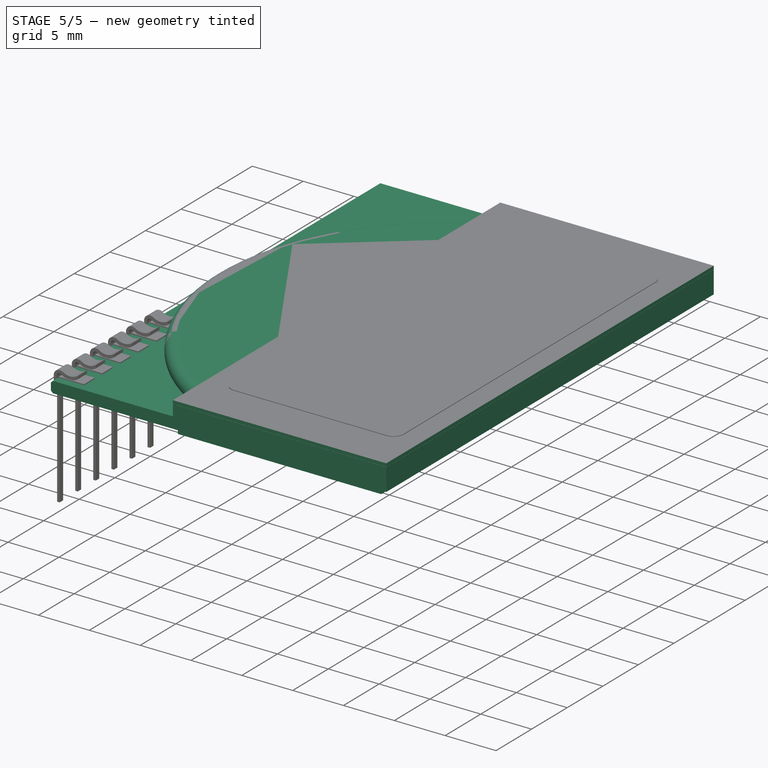
[diagram: stage 5 of 5 — iso view after this stage's code; geometry added in this stage tinted green]
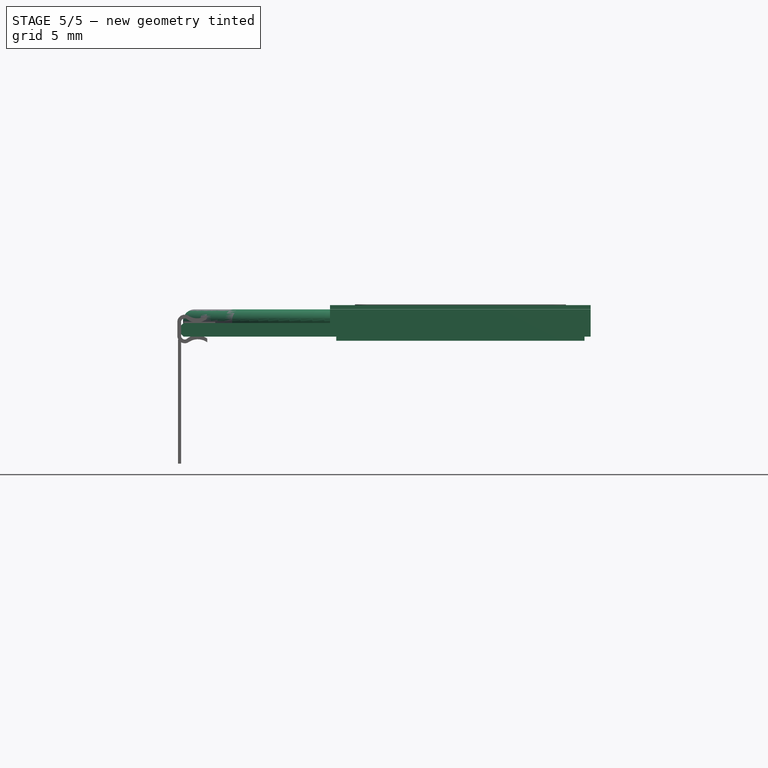
[diagram: stage 5 of 5 — front view after this stage's code; geometry added in this stage tinted green]
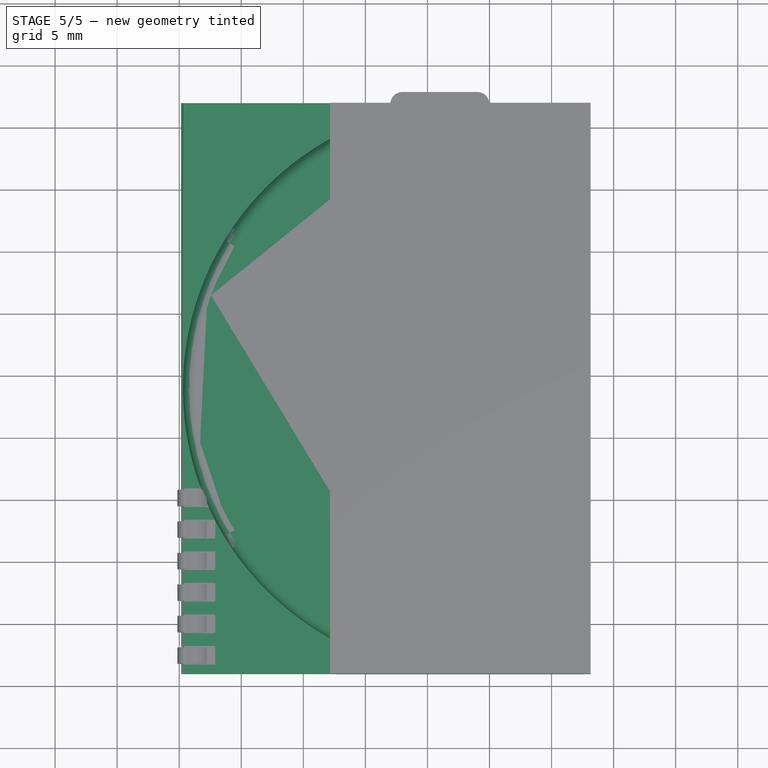
[diagram: stage 5 of 5 — top view after this stage's code; geometry added in this stage tinted green]
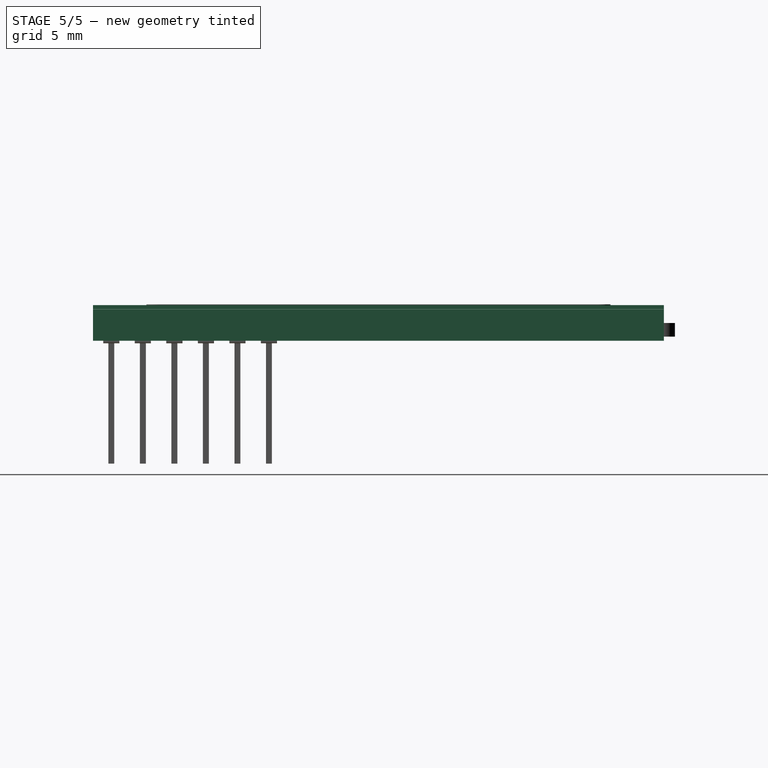
[diagram: stage 5 of 5 — right view after this stage's code; geometry added in this stage tinted green]
FEATURE [Sketcher::SketchObject] Sketch
  MapMode = 5
  Support = -> [XY_Plane]
  sketch-geometry (4):
    g0: LineSegment StartX=12.65 StartY=-14.2 StartZ=0 EndX=32.65 EndY=-14.2 EndZ=0
    g1: LineSegment StartX=32.65 StartY=-14.2 StartZ=0 EndX=32.65 EndY=31.8 EndZ=0
    g2: LineSegment StartX=32.65 StartY=31.8 StartZ=0 EndX=12.65 EndY=31.8 EndZ=0
    g3: LineSegment StartX=12.65 StartY=31.8 StartZ=0 EndX=12.65 EndY=-14.2 EndZ=0
  constraints (12):
    c: Coincident(g0,g1)
    c: Coincident(g1,g2)
    c: Coincident(g2,g3)
    c: Coincident(g3,g0)
    c: Horizontal(g0)
    c: Horizontal(g2)
    c: Vertical(g1)
    c: Vertical(g3)
    c: DistanceX(g-1,g0) = 12.65
    c: DistanceX(g2,g1) = 20
    c: DistanceY(g0,g1) = 46
    c: DistanceY(g0,g-1) = 14.2
FEATURE [PartDesign::Pad] Pad
  Length = 0.33
  Length2 = 100
  Profile = -> Sketch
  Type = 0
FEATURE [PartDesign::Body] Body
  Group = -> [Sketch,Pad]
  Origin = -> BodyOrigin
  Tip = -> Pad
FEATURE [Part::Box] Box  label="Kub"
  AttacherType = Attacher::AttachEngine3D
  Height = 1.1
  Length = 33
  Placement = pos=(0.15,-14.2,0.33) rot=(0,0,1;0rad)
  Width = 46
FEATURE [Part::Box] Box001  label="Kub001"
  AttacherType = Attacher::AttachEngine3D
  Height = 1.1
  Length = 21
  Placement = pos=(12.15,-14.2,1.43) rot=(0,0,1;0rad)
  Width = 46
FEATURE [Part::Box] Box002  label="Kub002"
  AttacherType = Attacher::AttachEngine3D
  Height = 0.33
  Length = 21
  Placement = pos=(12.15,-14.2,2.54) rot=(0,0,1;0rad)
  Width = 46
FEATURE [Part::Cylinder] Cylinder
  Angle = 360
  AttacherType = Attacher::AttachEngine3D
  Height = 1.1
  Placement = pos=(-19,8.8,1.43) rot=(0,0,1;0rad)
  Radius = 23
FEATURE [Part::Cut] Cut
  Base = -> Cylinder
  Placement = pos=(42.3,0,0) rot=(0,0,1;0rad)
  Tool = -> Box003
FEATURE [Part::Chamfer] Chamfer
  Base = -> Box
  Edges = 1 edges r=0.2: [Edge2]
FEATURE [Part::Chamfer] Chamfer001
  Base = -> Chamfer
  Edges = 1 edges r=0.2: [Edge3]
FEATURE [Part::Fillet] Fillet
  Base = -> Cut
  Edges = 1 edges r=0.95: [Edge6]
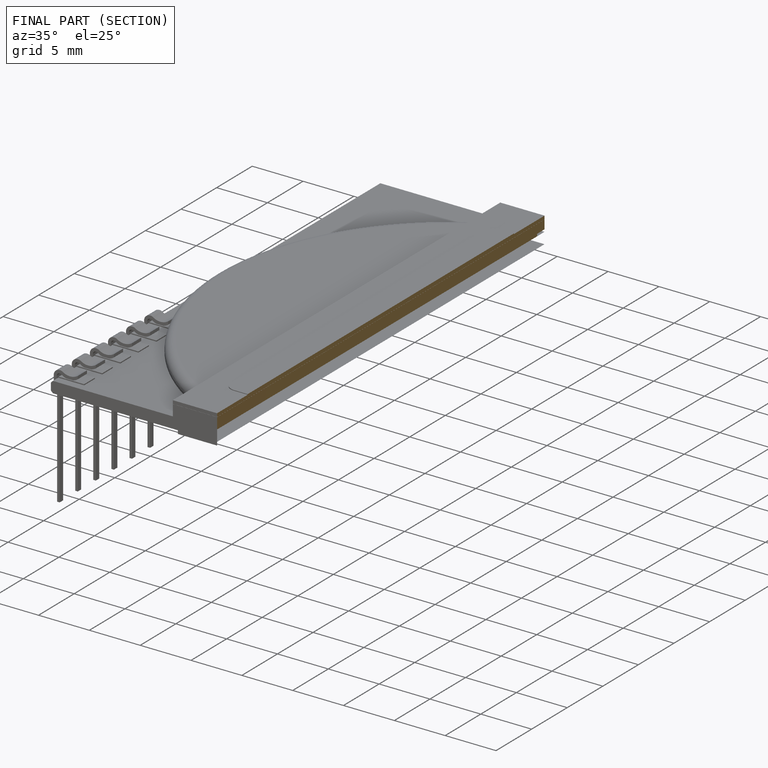
[diagram: finished part — half-section view (interior)]
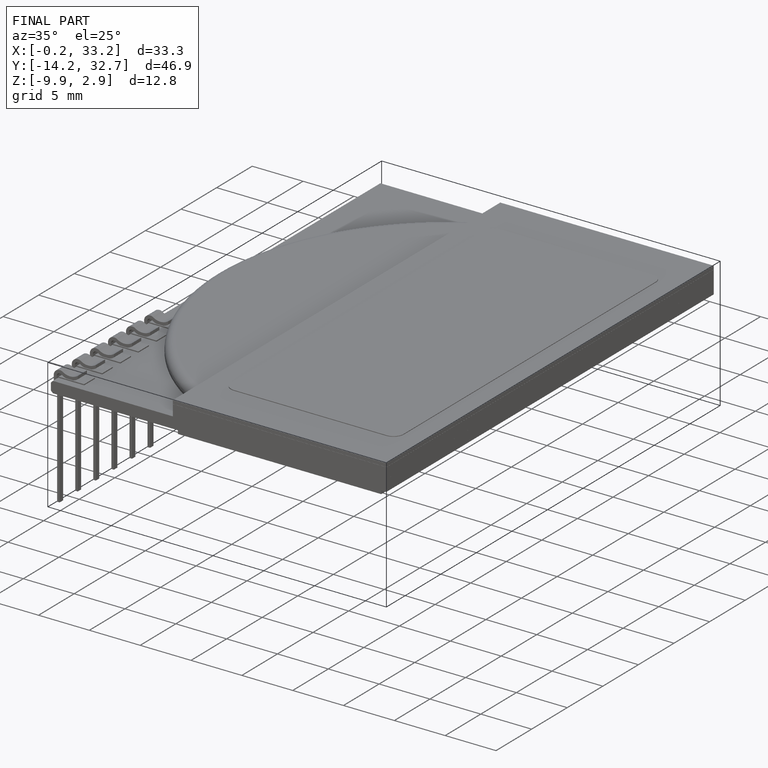
[diagram: finished part — iso view with bounding-box wireframe]
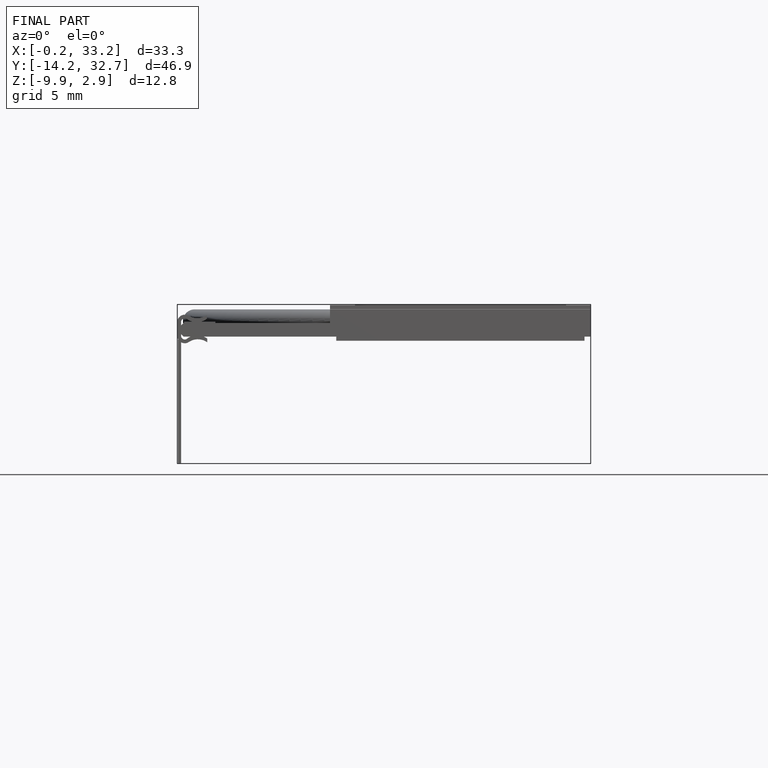
[diagram: finished part — front view with bounding-box wireframe]
